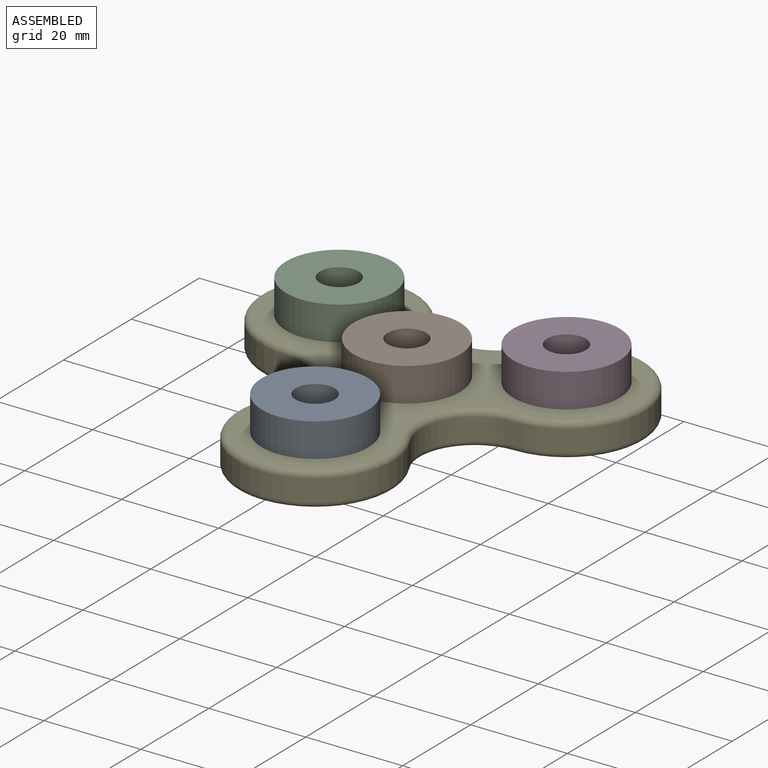
[diagram: assembled view]
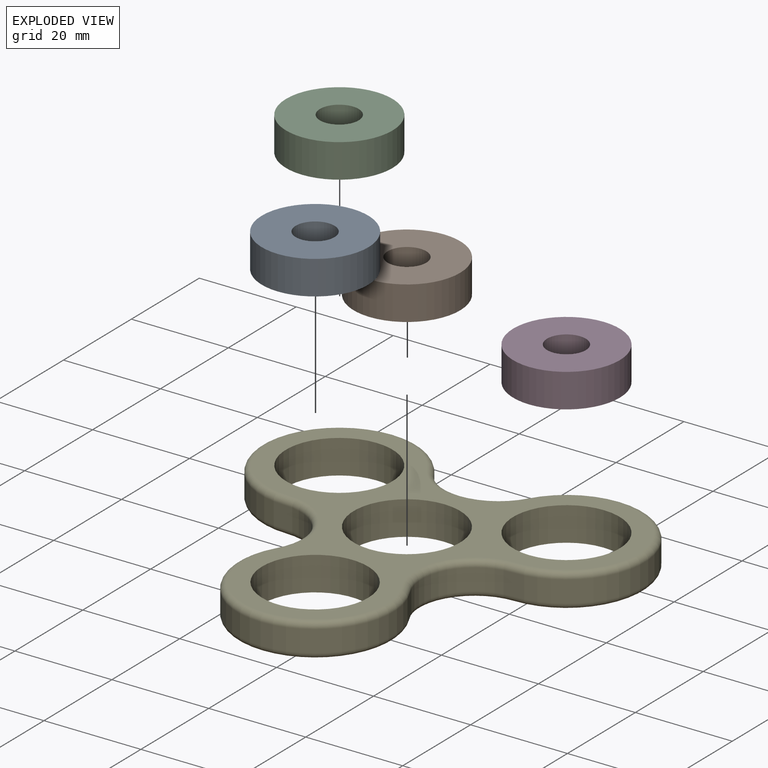
[diagram: exploded view]
GUIDED TOUR — MATED ASSEMBLY (Onshape document 9d75221e132493cb2fdffd3e, AutoMate assembly 9d75221e132493cb2fdffd3e_4a27fc64d5d6d19b5aee6cd7_a0ee12c8afc2ed0bc4cddd24_default)

This assembly has 5 components, labeled P0..P4 below (a component is one placed occurrence of a part; the same part can appear more than once), held together by 4 mates. A mate is a constraint between two components; its type names the relative motion it leaves free:
  CYLINDRICAL — leaves both rotation about and translation along the listed axis free.
Axis/direction vectors are unit vectors and 'through' points are millimeter coordinates, both in the assembly's world frame.

MATES
  1. CYLINDRICAL "Cylindrical 3": P3 <-> P4, axis (0.000, 0.000, -1.000) through (19.83, 17.09, 1.81) mm
  2. CYLINDRICAL "Cylindrical 4": P0 <-> P4, axis (0.000, 0.000, -1.000) through (-3.61, -23.51, 1.81) mm
  3. CYLINDRICAL "Cylindrical 2": P2 <-> P4, axis (0.000, 0.000, -1.000) through (-27.04, 17.09, 1.81) mm
  4. CYLINDRICAL "Cylindrical 1": P1 <-> P4, axis (0.000, 0.000, -1.000) through (-3.61, 3.55, 1.81) mm

ASSEMBLY ORDER
  1. P3 — the base component [order verified]
  2. P1 [order verified]
  3. P2 [order verified]
  4. P0 [order verified]
  5. P4 [order verified]
Order-tag legend:
  [order verified] — this step's position reverses a verified removal order: the component was checked to insert without passing through the ones already placed.

Of the 5 components, 1 carries the full construction recipe — the FeatureScript program that regenerates the part's solid from scratch; the rest are supplied as boundary geometry only.
Each toured component is shown spotlighted twice — in the assembled view, then in the exploded view, where a leader line traces a displaced component back to its assembled socket (saturated green if recipe-attached, orange if geometry-only; every other component desaturated gray) — followed by its recipe or geometry summary and the mates that hold it.
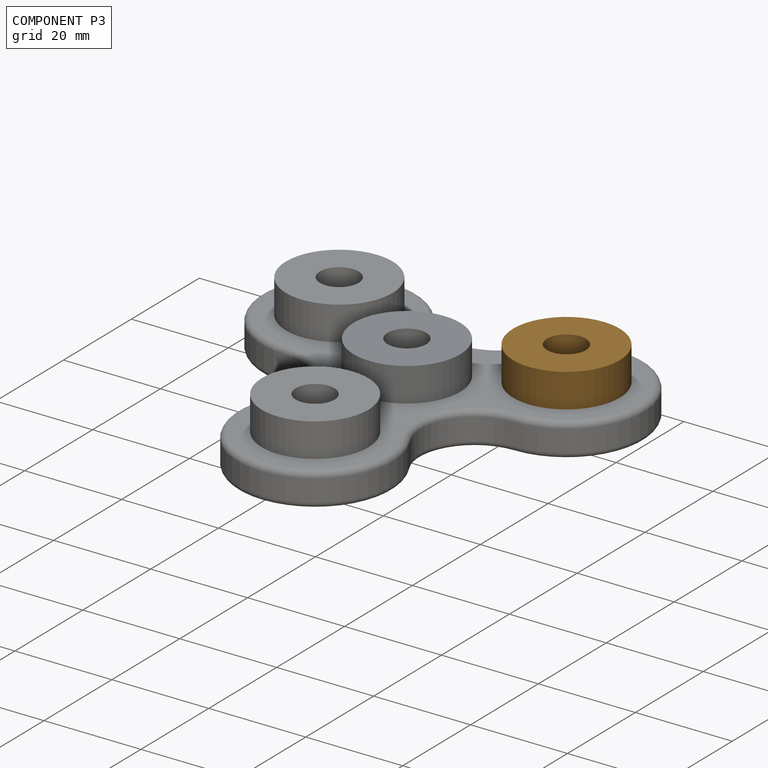
[diagram: component P3 — assembled]
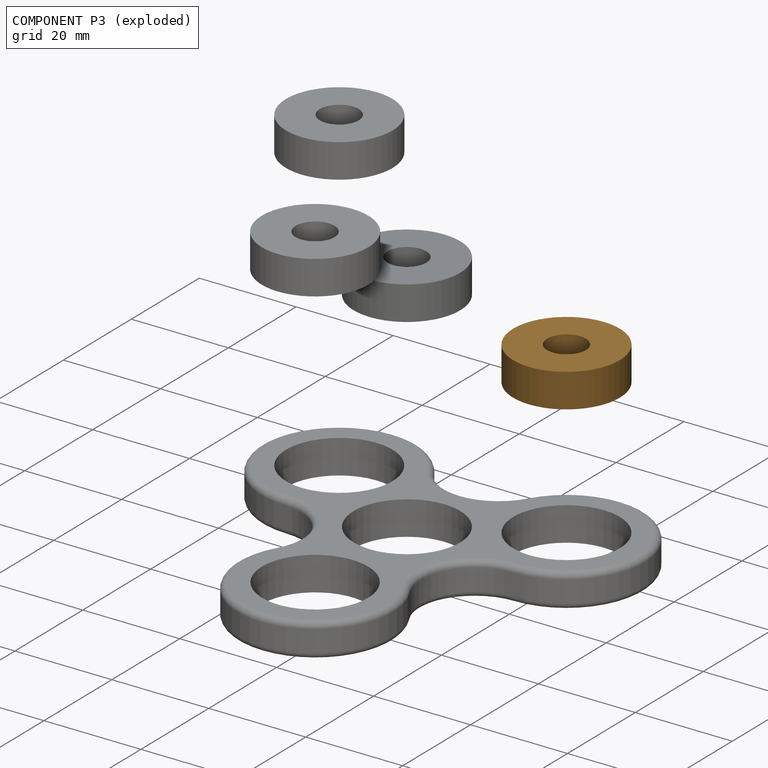
[diagram: component P3 — exploded]
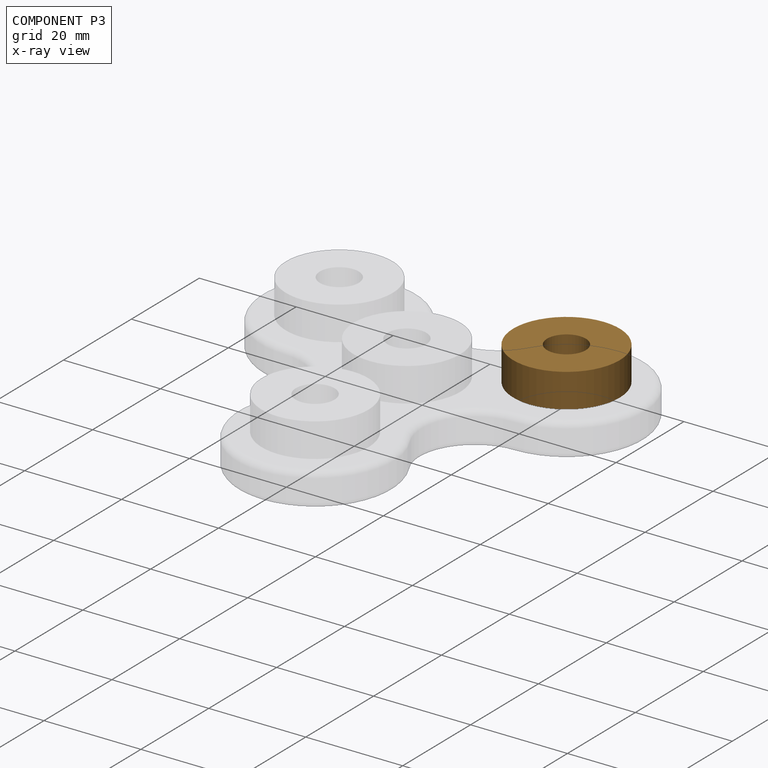
[diagram: component P3 — x-ray view]
COMPONENT P3 — geometry summary (no construction recipe available for this part):
  bounding box: 22.0 x 22.0 x 7.0 mm
  B-rep topology: 1 solid, 4 faces, 12 edges
  volume: 2309 mm^3 (68% of its bounding box)
  symmetry: 2-fold rotationally symmetric about the x axis; 2-fold rotationally symmetric about the y axis; revolution-symmetric about the z axis through its bounding-box center; mirror-symmetric across its x mid-plane, y mid-plane, z mid-plane
Held by: CYLINDRICAL mate "Cylindrical 3" to P4.
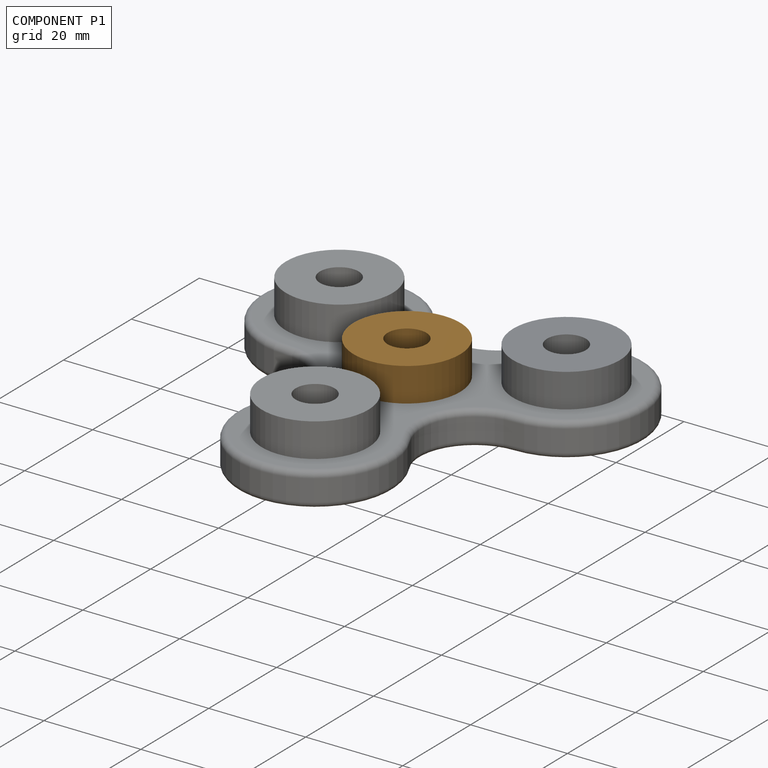
[diagram: component P1 — assembled]
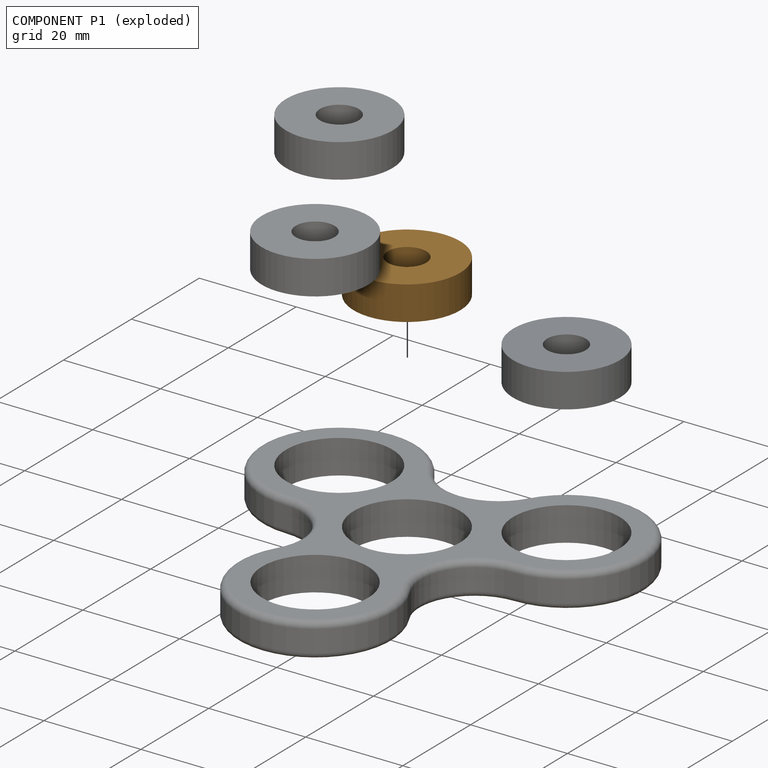
[diagram: component P1 — exploded]
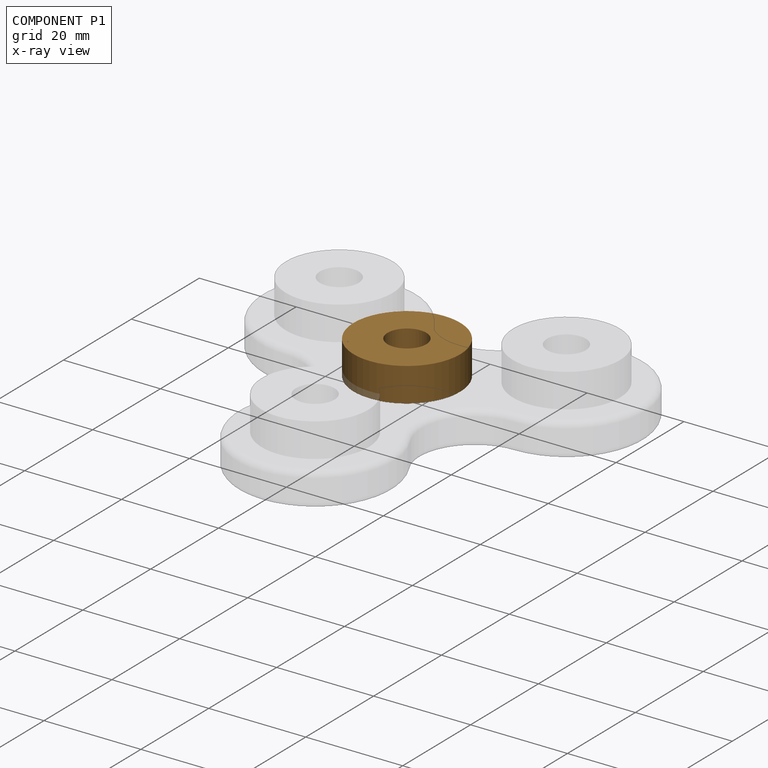
[diagram: component P1 — x-ray view]
COMPONENT P1 — geometry summary (no construction recipe available for this part):
  bounding box: 22.0 x 22.0 x 7.0 mm
  B-rep topology: 1 solid, 4 faces, 12 edges
  volume: 2309 mm^3 (68% of its bounding box)
  symmetry: 2-fold rotationally symmetric about the x axis; 2-fold rotationally symmetric about the y axis; revolution-symmetric about the z axis through its bounding-box center; mirror-symmetric across its x mid-plane, y mid-plane, z mid-plane
Held by: CYLINDRICAL mate "Cylindrical 1" to P4.
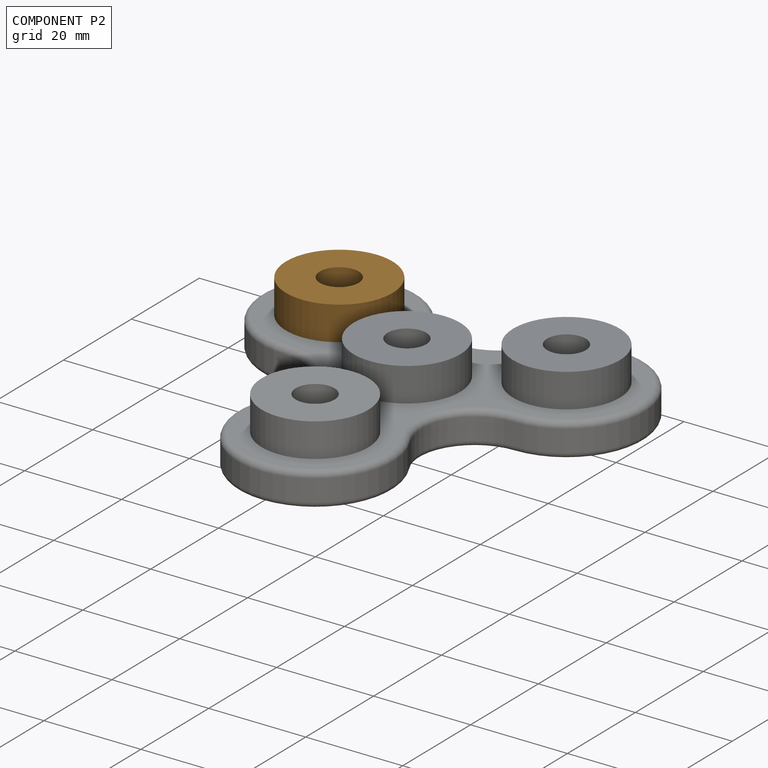
[diagram: component P2 — assembled]
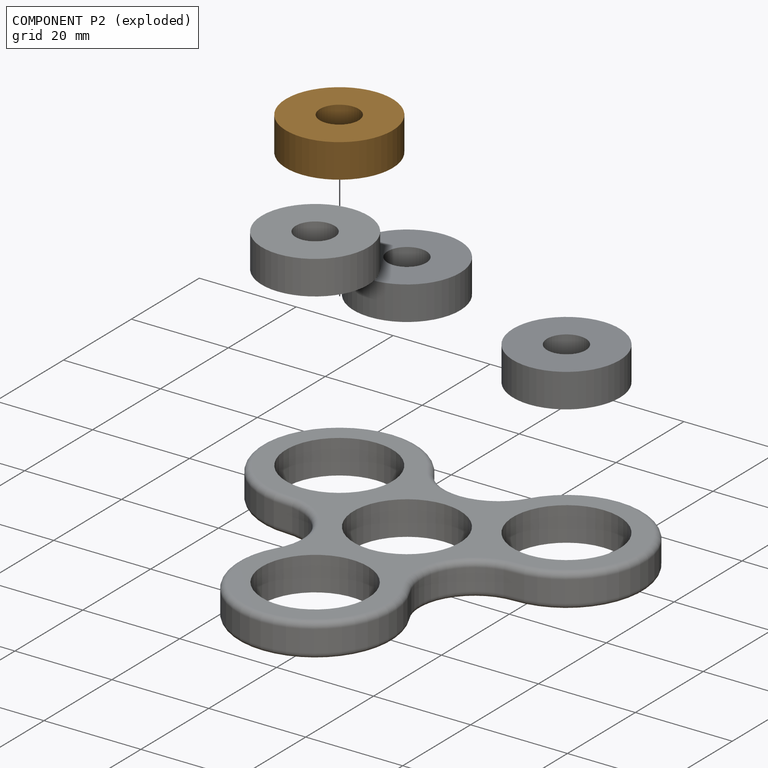
[diagram: component P2 — exploded]
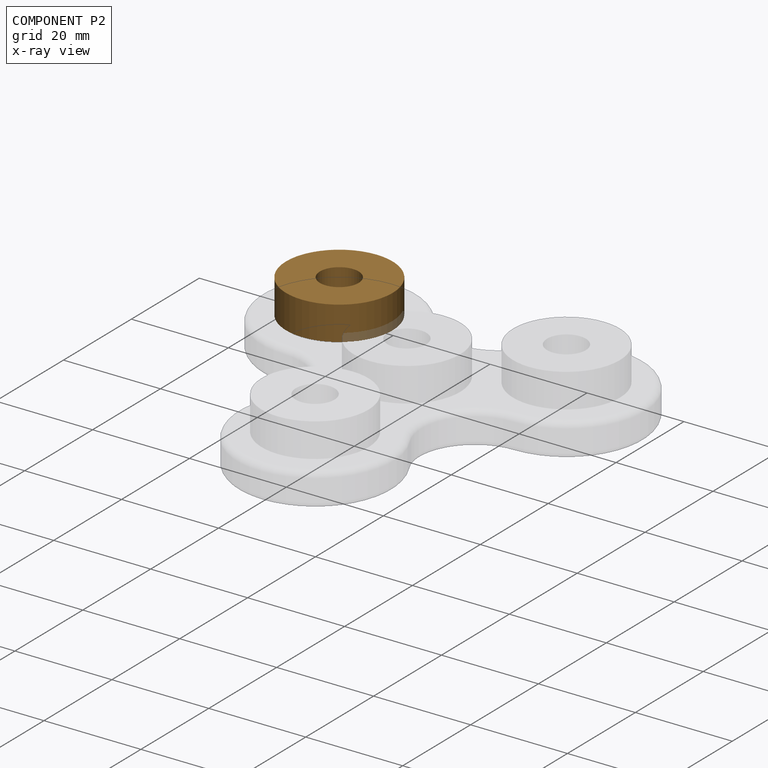
[diagram: component P2 — x-ray view]
COMPONENT P2 — geometry summary (no construction recipe available for this part):
  bounding box: 22.0 x 22.0 x 7.0 mm
  B-rep topology: 1 solid, 4 faces, 12 edges
  volume: 2309 mm^3 (68% of its bounding box)
  symmetry: 2-fold rotationally symmetric about the x axis; 2-fold rotationally symmetric about the y axis; revolution-symmetric about the z axis through its bounding-box center; mirror-symmetric across its x mid-plane, y mid-plane, z mid-plane
Held by: CYLINDRICAL mate "Cylindrical 2" to P4.
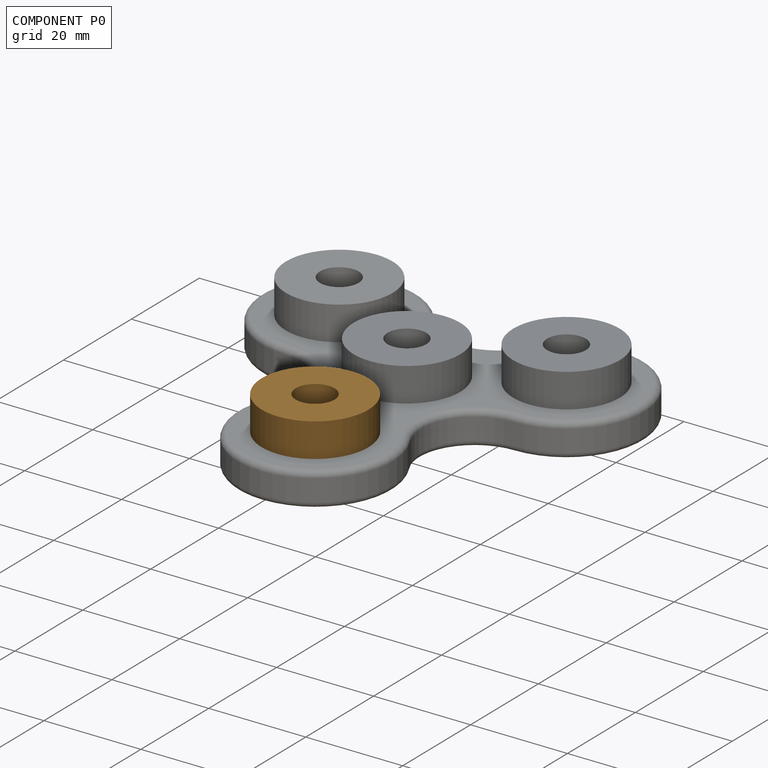
[diagram: component P0 — assembled]
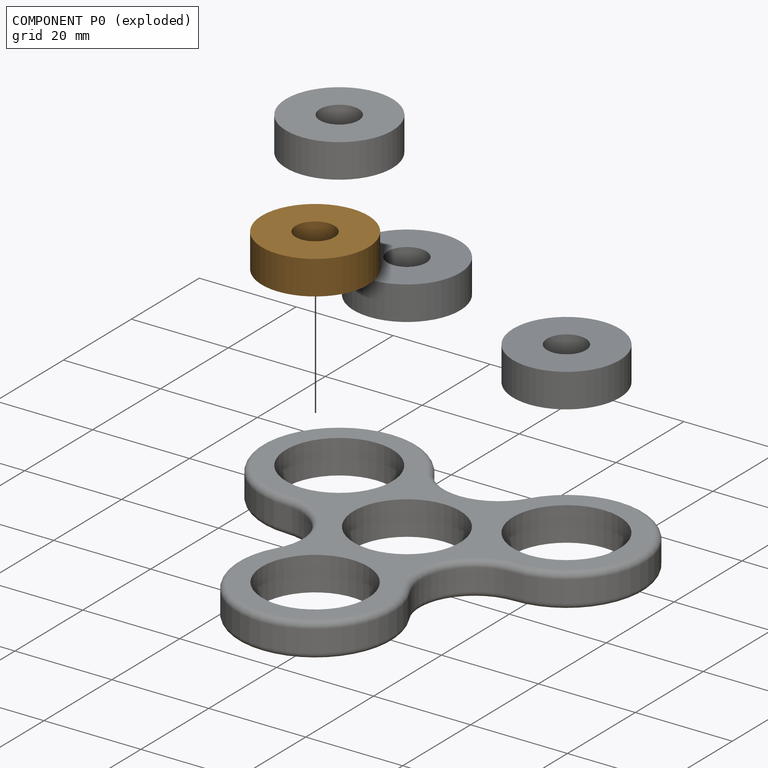
[diagram: component P0 — exploded]
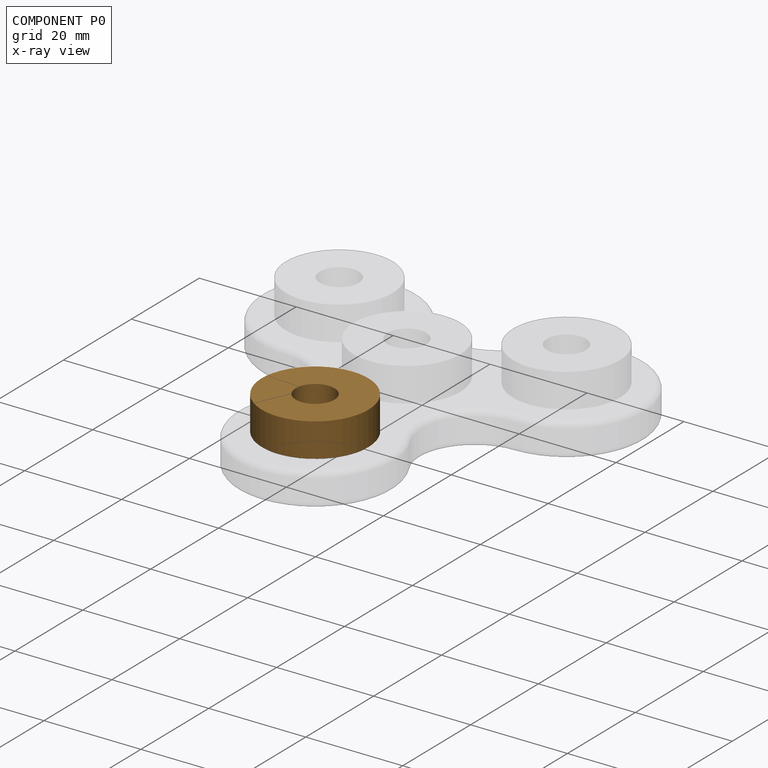
[diagram: component P0 — x-ray view]
COMPONENT P0 — geometry summary (no construction recipe available for this part):
  bounding box: 22.0 x 22.0 x 7.0 mm
  B-rep topology: 1 solid, 4 faces, 12 edges
  volume: 2309 mm^3 (68% of its bounding box)
  symmetry: 2-fold rotationally symmetric about the x axis; 2-fold rotationally symmetric about the y axis; revolution-symmetric about the z axis through its bounding-box center; mirror-symmetric across its x mid-plane, y mid-plane, z mid-plane
Held by: CYLINDRICAL mate "Cylindrical 4" to P4.
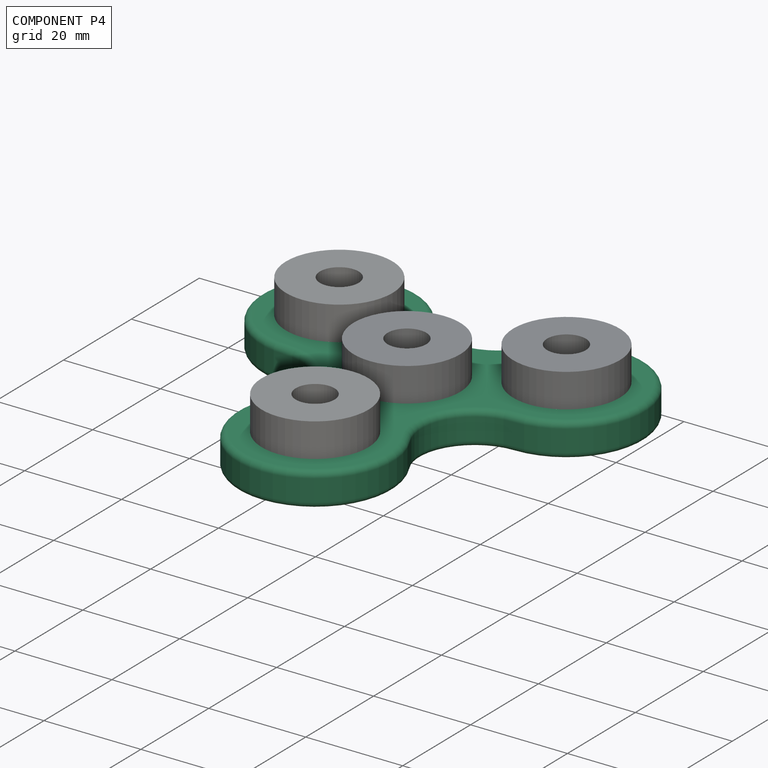
[diagram: component P4 — assembled]
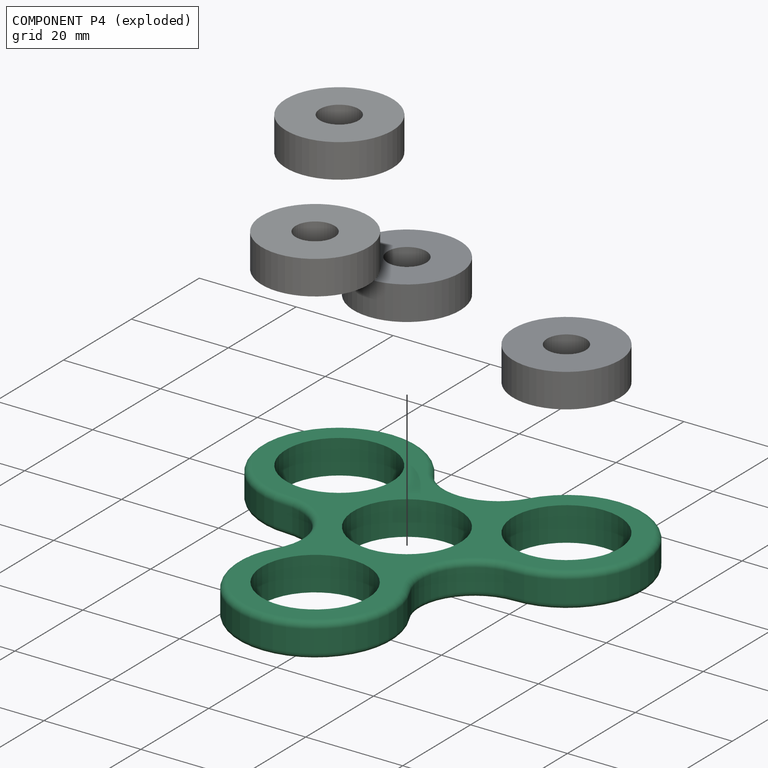
[diagram: component P4 — exploded]
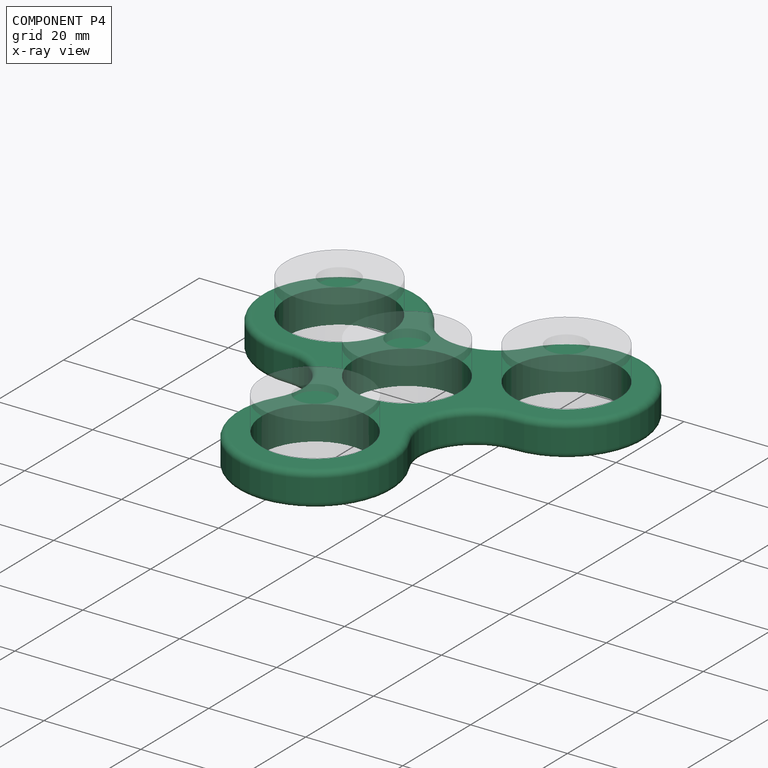
[diagram: component P4 — x-ray view]
COMPONENT P4 — recipe-attached (CADFS 00391613, mesh-verified: the recipe's output STEP matches this component's geometry to below the mesh-comparison resolution (tessellation chordal tolerance ~0.161 mm)).
Held by: CYLINDRICAL mate "Cylindrical 3" to P3; CYLINDRICAL mate "Cylindrical 4" to P0; CYLINDRICAL mate "Cylindrical 2" to P2; CYLINDRICAL mate "Cylindrical 1" to P1.
Construction recipe (FeatureScript — the CAD program that rebuilds this solid; sketch coordinates are in the units given by the * unit suffixes, e.g. mm):

FeatureScript 1511;
import(path : "onshape/std/geometry.fs", version : "1511.0");
import(path : "onshape/std/common.fs", version : "1511.0");
const mm = millimeter;
const VERTEX = EntityType.VERTEX;
const EDGE = EntityType.EDGE;
const FACE = EntityType.FACE;
const BODY = EntityType.BODY;
function v(x, y){return vector(x, y);}
function OD(order){return orderDisambiguation(order);}
function OSD(set){return originalSetDisambiguation(set);}
function TD(topology){return topologyDisambiguation(topology);}
function TDD(query){return trueDependencyDisambiguation(query);}
function sQuery(a, b, c) {return sketchEntityQuery(a, b, c);}

annotation { "Feature Type Name" : "Feature", "Feature Type Description" : "" }
export const myFeature = defineFeature(function(context is Context, id is Id, definition is map)
    precondition{}
    {
        {
            var Q0;
            Q0=qCreatedBy(makeId("Top.planeOp"),FACE);
            var sketch = newSketch(context, id + "F0", { "sketchPlane" : qUnion([Q0])});
            skArc(sketch, "E0", {"start": v(0, 11) * mm, "mid": v(-5.5, -9.52) * mm, "end": v(9.52, 5.5) * mm, "construction": true});
            skLineSegment(sketch, "E1", {"start": v(0, 0) * mm, "end": v(92.12, 53.18) * mm, "construction": true});
            skLineSegment(sketch, "E2", {"start": v(0, 0) * mm, "end": v(-9.52, 5.5) * mm, "construction": true});
            skLineSegment(sketch, "E3", {"start": v(0, 0) * mm, "end": v(0, -70.87) * mm, "construction": true});
            skCircle(sketch, "E4", {"center": v(-23.44, 13.53) * mm, "radius": 11 * mm, "construction": true});
            skArc(sketch, "E5", {"start": v(13.92, 8.04) * mm, "mid": v(28.93, 4.01) * mm, "end": v(32.95, 19.03) * mm, "construction": true});
            skCircle(sketch, "E6", {"center": v(0, -27.06) * mm, "radius": 11 * mm, "construction": true});
            skLineSegment(sketch, "E7", {"start": v(0, 0) * mm, "end": v(-69.62, -40.2) * mm, "construction": true});
            skLineSegment(sketch, "E8", {"start": v(0, 0) * mm, "end": v(71.9, -41.52) * mm, "construction": true});
            skLineSegment(sketch, "E9", {"start": v(0, 0) * mm, "end": v(0, 11) * mm, "construction": true});
            skLineSegment(sketch, "E10", {"start": v(-23.44, 13.53) * mm, "end": v(-12.14, 33.1) * mm, "construction": true});
            skLineSegment(sketch, "E11", {"start": v(23.44, 13.53) * mm, "end": v(12.02, 33.3) * mm, "construction": true});
            skLineSegment(sketch, "E12", {"start": v(-37.35, 21.57) * mm, "end": v(-32.95, 19.03) * mm, "construction": true});
            skLineSegment(sketch, "E13", {"start": v(9.52, 5.5) * mm, "end": v(13.92, 8.04) * mm});
            skLineSegment(sketch, "E14", {"start": v(37.35, 21.57) * mm, "end": v(32.95, 19.03) * mm});
            skArc(sketch, "E15", {"start": v(-9.52, 5.5) * mm, "mid": v(-5.5, 9.52) * mm, "end": v(0, 11) * mm});
            skArc(sketch, "E16", {"start": v(-9.52, 21.57) * mm, "mid": v(-5.5, 17.54) * mm, "end": v(0, 16.07) * mm});
            skArc(sketch, "E17", {"start": v(-32.95, 19.03) * mm, "mid": v(-17.94, 23.05) * mm, "end": v(-13.92, 8.04) * mm});
            skLineSegment(sketch, "E18.trimOffspring", {"start": v(-37.35, 21.57) * mm, "end": v(-92.12, 53.18) * mm, "construction": true});
            skLineSegment(sketch, "E19.trimOffspring", {"start": v(-13.92, 8.04) * mm, "end": v(-32.95, 19.03) * mm, "construction": true});
            skArc(sketch, "E20", {"start": v(-9.52, 21.57) * mm, "mid": v(-23.44, 29.6) * mm, "end": v(-37.35, 21.57) * mm});
            skLineSegment(sketch, "E21", {"start": v(-37.35, 21.57) * mm, "end": v(-32.95, 19.03) * mm});
            skLineSegment(sketch, "E22", {"start": v(-13.92, 8.04) * mm, "end": v(-9.52, 5.5) * mm});
            skPoint(sketch, "E23.start.orphan", {"position": v(23.44, 29.6) * mm});
            skLineSegment(sketch, "E24.trimOffspring", {"start": v(0, 16.07) * mm, "end": v(0, 62.86) * mm, "construction": true});
            skLineSegment(sketch, "E25", {"start": v(0, 16.07) * mm, "end": v(0, 11) * mm});
            skLineSegment(sketch, "E26.MirrorCS", {"start": v(-13.92, -8.04) * mm, "end": v(-9.52, -5.5) * mm});
            skArc(sketch, "E27.MirrorCS", {"start": v(-23.44, -2.54) * mm, "mid": v(-17.94, -4.01) * mm, "end": v(-13.92, -8.04) * mm});
            skArc(sketch, "E28.MirrorCS", {"start": v(-23.44, -2.54) * mm, "mid": v(-37.35, 5.5) * mm, "end": v(-37.35, 21.57) * mm});
            skArc(sketch, "E29.MirrorCS", {"start": v(-9.52, 5.5) * mm, "mid": v(-11, 0) * mm, "end": v(-9.52, -5.5) * mm});
            skArc(sketch, "E30.MirrorCS", {"start": v(-32.95, 19.03) * mm, "mid": v(-28.93, 4.01) * mm, "end": v(-13.92, 8.04) * mm});
            skArc(sketch, "E31.MirrorCS", {"start": v(23.44, -2.54) * mm, "mid": v(37.35, 5.5) * mm, "end": v(37.35, 21.57) * mm});
            skLineSegment(sketch, "E32.MirrorCS", {"start": v(13.92, 8.04) * mm, "end": v(9.52, 5.5) * mm});
            skArc(sketch, "E33.MirrorCS", {"start": v(32.95, 19.03) * mm, "mid": v(17.94, 23.05) * mm, "end": v(13.92, 8.04) * mm});
            skArc(sketch, "E34.MirrorCS", {"start": v(32.95, 19.03) * mm, "mid": v(28.93, 4.01) * mm, "end": v(13.92, 8.04) * mm});
            skLineSegment(sketch, "E35.MirrorCS", {"start": v(13.92, -8.04) * mm, "end": v(9.52, -5.5) * mm});
            skArc(sketch, "E36.MirrorCS", {"start": v(23.44, -2.54) * mm, "mid": v(17.94, -4.01) * mm, "end": v(13.92, -8.04) * mm});
            skLineSegment(sketch, "E37.MirrorCS", {"start": v(37.35, 21.57) * mm, "end": v(32.95, 19.03) * mm, "construction": true});
            skArc(sketch, "E38.MirrorCS", {"start": v(9.52, 5.5) * mm, "mid": v(11, 0) * mm, "end": v(9.52, -5.5) * mm});
            skArc(sketch, "E39.MirrorCS", {"start": v(9.52, 21.57) * mm, "mid": v(23.44, 29.6) * mm, "end": v(37.35, 21.57) * mm});
            skLineSegment(sketch, "E40.MirrorCS", {"start": v(23.44, 13.53) * mm, "end": v(12.14, 33.1) * mm, "construction": true});
            skLineSegment(sketch, "E41.MirrorCS", {"start": v(0, 0) * mm, "end": v(9.52, 5.5) * mm, "construction": true});
            skArc(sketch, "E42.MirrorCS", {"start": v(9.52, 5.5) * mm, "mid": v(5.5, 9.52) * mm, "end": v(0, 11) * mm});
            skArc(sketch, "E43.MirrorCS", {"start": v(9.52, 21.57) * mm, "mid": v(5.5, 17.54) * mm, "end": v(0, 16.07) * mm});
            skCircle(sketch, "E44.MirrorC", {"center": v(23.44, 13.53) * mm, "radius": 11 * mm, "construction": true});
            skLineSegment(sketch, "E45.MirrorCS", {"start": v(13.92, 8.04) * mm, "end": v(32.95, 19.03) * mm, "construction": true});
            skArc(sketch, "E46", {"start": v(-9.52, -5.5) * mm, "mid": v(0, -11) * mm, "end": v(9.52, -5.5) * mm});
            skArc(sketch, "E47.MirrorCS", {"start": v(-13.92, -19.03) * mm, "mid": v(-12.45, -13.53) * mm, "end": v(-13.92, -8.04) * mm});
            skArc(sketch, "E48.MirrorCS", {"start": v(-13.92, -19.03) * mm, "mid": v(-13.92, -35.1) * mm, "end": v(0, -43.13) * mm});
            skArc(sketch, "E49.MirrorCS", {"start": v(13.92, -19.03) * mm, "mid": v(12.45, -13.53) * mm, "end": v(13.92, -8.04) * mm});
            skArc(sketch, "E50.MirrorCS", {"start": v(13.92, -19.03) * mm, "mid": v(13.92, -35.1) * mm, "end": v(0, -43.13) * mm});
            skCircle(sketch, "E51", {"center": v(0, -27.06) * mm, "radius": 10.94 * mm});
            skSolve(sketch);
        }
        {
            var Q0;
            Q0=qSketchRegion(id+"F0",true);
            extrude(context, id + "F1", {"entities" : qUnion([Q0]), "depth" : 7 * mm});
        }
        {
            var Q0;
            Q0=makeQuery(id+"F1.opExtrude","CAP_EDGE",EDGE,{"disambiguationData":[OSD([sQuery(id+"F0.wireOp",EDGE,"E36.MirrorCS"),sQuery(id+"F0.wireOp",EDGE,"E49.MirrorCS")])],"isStart":false});
            var Q1;
            Q1=makeQuery(id+"F1.opExtrude","CAP_EDGE",EDGE,{"disambiguationData":[OSD([sQuery(id+"F0.wireOp",EDGE,"E48.MirrorCS"),sQuery(id+"F0.wireOp",EDGE,"E50.MirrorCS")])],"isStart":false});
            var Q2;
            Q2=makeQuery(id+"F1.opExtrude","CAP_EDGE",EDGE,{"disambiguationData":[OSD([sQuery(id+"F0.wireOp",EDGE,"E27.MirrorCS"),sQuery(id+"F0.wireOp",EDGE,"E47.MirrorCS")])],"isStart":false});
            var Q3;
            Q3=makeQuery(id+"F1.opExtrude","CAP_EDGE",EDGE,{"disambiguationData":[OSD([sQuery(id+"F0.wireOp",EDGE,"E20"),sQuery(id+"F0.wireOp",EDGE,"E28.MirrorCS")])],"isStart":false});
            var Q4;
            Q4=makeQuery(id+"F1.opExtrude","CAP_EDGE",EDGE,{"disambiguationData":[OSD([sQuery(id+"F0.wireOp",EDGE,"E16"),sQuery(id+"F0.wireOp",EDGE,"E43.MirrorCS")])],"isStart":false});
            var Q5;
            Q5=makeQuery(id+"F1.opExtrude","CAP_EDGE",EDGE,{"disambiguationData":[OSD([sQuery(id+"F0.wireOp",EDGE,"E31.MirrorCS"),sQuery(id+"F0.wireOp",EDGE,"E39.MirrorCS")])],"isStart":false});
            var Q6;
            Q6=makeQuery(id+"F1.opExtrude","CAP_EDGE",EDGE,{"disambiguationData":[OSD([sQuery(id+"F0.wireOp",EDGE,"E31.MirrorCS"),sQuery(id+"F0.wireOp",EDGE,"E39.MirrorCS")])],"isStart":true});
            var Q7;
            Q7=makeQuery(id+"F1.opExtrude","CAP_EDGE",EDGE,{"disambiguationData":[OSD([sQuery(id+"F0.wireOp",EDGE,"E36.MirrorCS"),sQuery(id+"F0.wireOp",EDGE,"E49.MirrorCS")])],"isStart":true});
            var Q8;
            Q8=makeQuery(id+"F1.opExtrude","CAP_EDGE",EDGE,{"disambiguationData":[OSD([sQuery(id+"F0.wireOp",EDGE,"E48.MirrorCS"),sQuery(id+"F0.wireOp",EDGE,"E50.MirrorCS")])],"isStart":true});
            var Q9;
            Q9=makeQuery(id+"F1.opExtrude","CAP_EDGE",EDGE,{"disambiguationData":[OSD([sQuery(id+"F0.wireOp",EDGE,"E27.MirrorCS"),sQuery(id+"F0.wireOp",EDGE,"E47.MirrorCS")])],"isStart":true});
            var Q10;
            Q10=makeQuery(id+"F1.opExtrude","CAP_EDGE",EDGE,{"disambiguationData":[OSD([sQuery(id+"F0.wireOp",EDGE,"E20"),sQuery(id+"F0.wireOp",EDGE,"E28.MirrorCS")])],"isStart":true});
            var Q11;
            Q11=makeQuery(id+"F1.opExtrude","CAP_EDGE",EDGE,{"disambiguationData":[OSD([sQuery(id+"F0.wireOp",EDGE,"E16"),sQuery(id+"F0.wireOp",EDGE,"E43.MirrorCS")])],"isStart":true});
            fillet(context, id + "F2", {"entities" : qUnion([Q0, Q1, Q2, Q3, Q4, Q5, Q6, Q7, Q8, Q9, Q10, Q11]), "radius" : 1.27 * mm, "tangentPropagation" : true, "allowEdgeOverflow" : false});
        }
    });
PROVENANCE & LICENSES
Assembly (occurrences, transforms, mates, per-part STEP geometry): AutoMate dataset, Zenodo record 7776208, CC0.
Construction recipes: CADFS (HuggingFace VladPyatov/CADFS, CC-BY-4.0, layered over the ABC dataset), FeatureScript reconstruction programs keyed by ABC model id.
Join: ABC meta listings map ABC model id -> Onshape documentId; within a shared document, parts are matched by geometric signature (bounding-box dims + volume at 0.1% relative tolerance, exact B-rep face/solid counts).
Verification: 1 of this assembly's 5 components carries a recipe attachment, and every attachment is mesh-verified: the CADFS STEP and the AutoMate member STEP were compared as meshes in their shared local frame (symmetric sampled-point-to-mesh distance); worst across the 1 attachment: below the mesh-comparison resolution (tessellation chordal tolerance ~0.161 mm) on a 108 mm part.
Renders: orthographic iso camera (az 35 / el 25); the floor grid conveys scale (grid pitch printed in each image; no ruler). In the exploded view each component is displaced by its stored offset vector: the offsets alone carry the explosion direction (mate normal/axis signs are not orientation cues and do not encode it), and separation distances are assigned per mate-chain, not proportionally to assembly-order depth.
